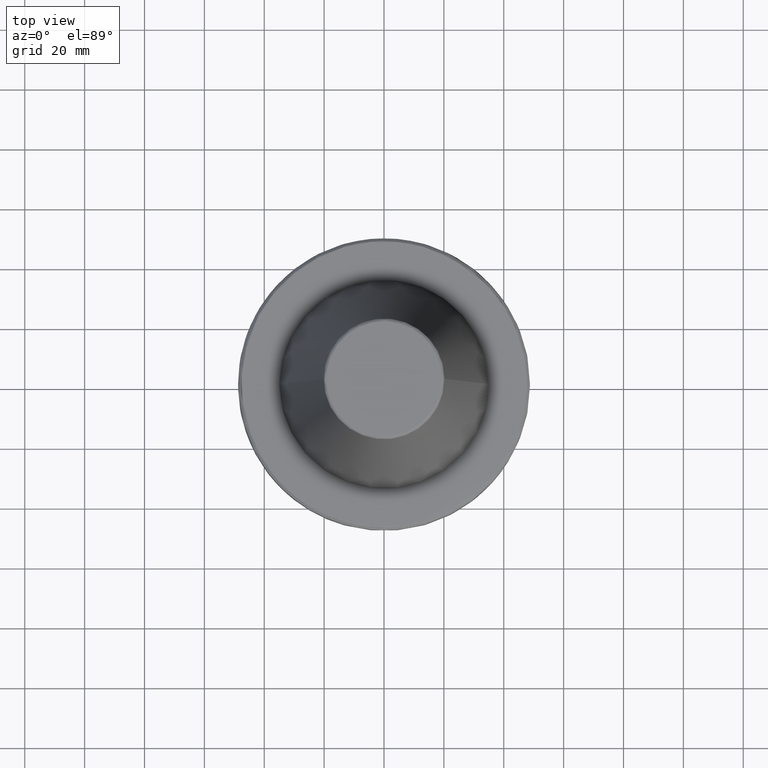
[diagram: clean part render]
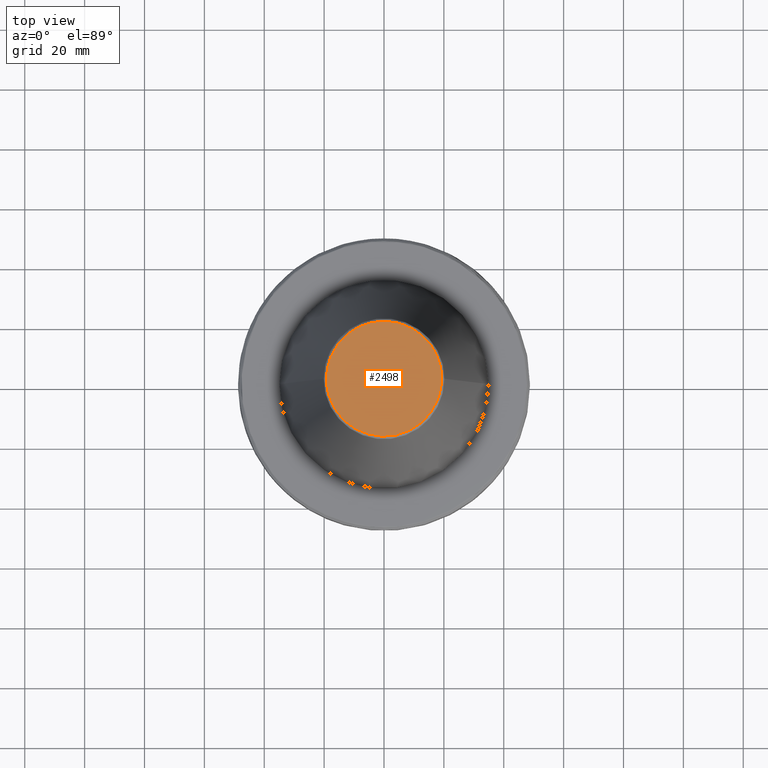
[diagram: same view with one face highlighted and labeled with its STEP entity id]
A machine part, top view. The second image highlights one B-rep face of the part: STEP entity #2498.
In plain terms, the highlighted planar face has unit normal (0, 0, 1).
Its self-contained STEP definition (entity closure, byte-faithful):
#288 = EDGE_CURVE ( 'NONE', #527, #1155, #2917, .T. ) ;
#527 = VERTEX_POINT ( 'NONE', #638 ) ;
#638 = CARTESIAN_POINT ( 'NONE',  ( -19.22157500054538900, 2.378200593091449400E-015, 101.7500000000000000 ) ) ;
#804 = EDGE_CURVE ( 'NONE', #1155, #527, #1610, .T. ) ;
#1155 = VERTEX_POINT ( 'NONE', #2110 ) ;
#1168 = AXIS2_PLACEMENT_3D ( 'NONE', #1417, #2063, #1222 ) ;
#1209 = CARTESIAN_POINT ( 'NONE',  ( 19.22157500054538900, 0.0000000000000000000, 101.7500000000000000 ) ) ;
#1222 = DIRECTION ( 'NONE',  ( 1.000000000000000000, 0.0000000000000000000, -0.0000000000000000000 ) ) ;
#1252 = ORIENTED_EDGE ( 'NONE', *, *, #804, .F. ) ;
#1344 = CARTESIAN_POINT ( 'NONE',  ( -19.22157500054538600, 38.44315000109077100, 101.7500000000000000 ) ) ;
#1417 = CARTESIAN_POINT ( 'NONE',  ( 0.0000000000000000000, 0.0000000000000000000, 101.7500000000000000 ) ) ;
#1486 = CARTESIAN_POINT ( 'NONE',  ( -19.22157500054538900, -38.44315000109077100, 101.7500000000000000 ) ) ;
#1571 = CARTESIAN_POINT ( 'NONE',  ( 19.22157500054538900, 38.44315000109077100, 101.7500000000000000 ) ) ;
#1609 = CARTESIAN_POINT ( 'NONE',  ( -19.22157500054538900, 2.378200593091449400E-015, 101.7500000000000000 ) ) ;
#1610 =( BOUNDED_CURVE ( )  B_SPLINE_CURVE ( 3, ( #1704, #1675, #1486, #1785 ),
 .UNSPECIFIED., .F., .F. ) 
 B_SPLINE_CURVE_WITH_KNOTS ( ( 4, 4 ),
 ( 0.0000000000000000000, 1.000000000000000000 ),
 .UNSPECIFIED. ) 
 CURVE ( )  GEOMETRIC_REPRESENTATION_ITEM ( )  RATIONAL_B_SPLINE_CURVE ( ( 1.000000000000000000, 0.3333333333333333700, 0.3333333333333333700, 1.000000000000000000 ) ) 
 REPRESENTATION_ITEM ( '' )  );
#1675 = CARTESIAN_POINT ( 'NONE',  ( 19.22157500054538900, -38.44315000109077100, 101.7500000000000000 ) ) ;
#1704 = CARTESIAN_POINT ( 'NONE',  ( 19.22157500054538900, 0.0000000000000000000, 101.7500000000000000 ) ) ;
#1785 = CARTESIAN_POINT ( 'NONE',  ( -19.22157500054538900, 2.378200593091449400E-015, 101.7500000000000000 ) ) ;
#2063 = DIRECTION ( 'NONE',  ( 0.0000000000000000000, 0.0000000000000000000, 1.000000000000000000 ) ) ;
#2110 = CARTESIAN_POINT ( 'NONE',  ( 19.22157500054538900, 0.0000000000000000000, 101.7500000000000000 ) ) ;
#2498 = ADVANCED_FACE ( 'NONE', ( #2730 ), #2897, .T. ) ;
#2578 = ORIENTED_EDGE ( 'NONE', *, *, #288, .F. ) ;
#2730 = FACE_OUTER_BOUND ( 'NONE', #2871, .T. ) ;
#2871 = EDGE_LOOP ( 'NONE', ( #2578, #1252 ) ) ;
#2897 = PLANE ( 'NONE',  #1168 ) ;
#2917 =( BOUNDED_CURVE ( )  B_SPLINE_CURVE ( 3, ( #1609, #1344, #1571, #1209 ),
 .UNSPECIFIED., .F., .F. ) 
 B_SPLINE_CURVE_WITH_KNOTS ( ( 4, 4 ),
 ( 0.0000000000000000000, 1.000000000000000000 ),
 .UNSPECIFIED. ) 
 CURVE ( )  GEOMETRIC_REPRESENTATION_ITEM ( )  RATIONAL_B_SPLINE_CURVE ( ( 1.000000000000000000, 0.3333333333333333700, 0.3333333333333333700, 1.000000000000000000 ) ) 
 REPRESENTATION_ITEM ( '' )  );